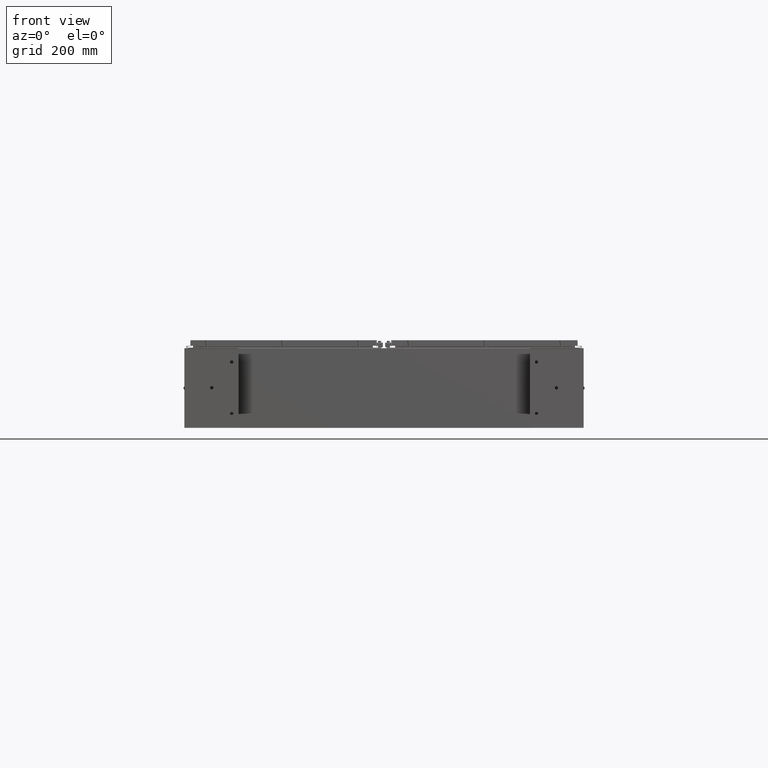
[diagram: clean part render]
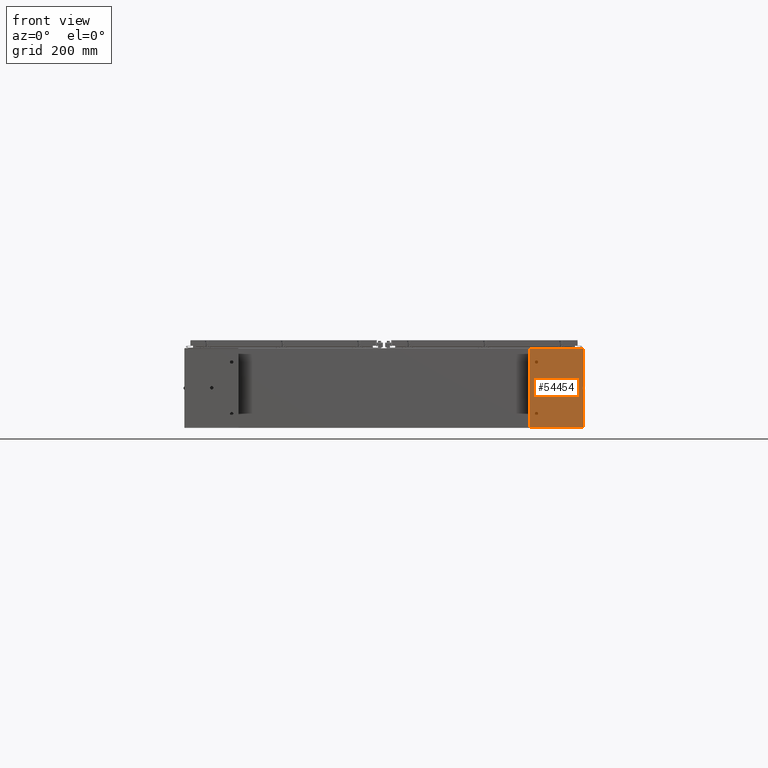
[diagram: same view with one face highlighted and labeled with its STEP entity id]
A machine part, front view. The second image highlights one B-rep face of the part: STEP entity #54454.
In plain terms, the highlighted planar face has unit normal (-0, -1, -0).
Its self-contained STEP definition (entity closure, byte-faithful):
#1050 = VERTEX_POINT ( 'NONE', #67561 ) ;
#1324 = VECTOR ( 'NONE', #30642, 39.37007874015748100 ) ;
#1493 = DIRECTION ( 'NONE',  ( -1.000000000000000000, -9.466330862652141700E-029, 0.0000000000000000000 ) ) ;
#1798 = ORIENTED_EDGE ( 'NONE', *, *, #43441, .F. ) ;
#1810 = DIRECTION ( 'NONE',  ( -1.000000000000000000, -9.466330862652141700E-029, 0.0000000000000000000 ) ) ;
#2202 = CIRCLE ( 'NONE', #42148, 0.2500000000000000000 ) ;
#3073 = ORIENTED_EDGE ( 'NONE', *, *, #45602, .T. ) ;
#4561 = AXIS2_PLACEMENT_3D ( 'NONE', #4680, #46499, #10729 ) ;
#4680 = CARTESIAN_POINT ( 'NONE',  ( 3.878999999999980000, -3.000000000000001800, -0.1049999999999378200 ) ) ;
#6419 = VERTEX_POINT ( 'NONE', #16042 ) ;
#7399 = EDGE_CURVE ( 'NONE', #66103, #13696, #44037, .T. ) ;
#7938 = AXIS2_PLACEMENT_3D ( 'NONE', #29805, #71355, #35818 ) ;
#9477 = CIRCLE ( 'NONE', #17833, 0.2499999999999998100 ) ;
#10403 = EDGE_CURVE ( 'NONE', #1050, #66103, #62993, .T. ) ;
#10729 = DIRECTION ( 'NONE',  ( -1.000000000000000000, 0.0000000000000000000, 0.0000000000000000000 ) ) ;
#10912 = VERTEX_POINT ( 'NONE', #42623 ) ;
#11641 = VERTEX_POINT ( 'NONE', #22710 ) ;
#13696 = VERTEX_POINT ( 'NONE', #24333 ) ;
#15060 = ORIENTED_EDGE ( 'NONE', *, *, #68557, .F. ) ;
#16042 = CARTESIAN_POINT ( 'NONE',  ( 3.628999999999980500, -3.000000000000001800, -0.1049999999999378200 ) ) ;
#17833 = AXIS2_PLACEMENT_3D ( 'NONE', #27972, #69566, #34000 ) ;
#18291 = CIRCLE ( 'NONE', #4561, 0.2499999999999998100 ) ;
#18812 = ORIENTED_EDGE ( 'NONE', *, *, #44799, .F. ) ;
#18969 = CARTESIAN_POINT ( 'NONE',  ( -3.879000000000012900, -3.000000000000001800, -0.1049999999999290800 ) ) ;
#20654 = EDGE_LOOP ( 'NONE', ( #77280, #3073 ) ) ;
#21082 = DIRECTION ( 'NONE',  ( -0.0000000000000000000, -1.198498701752371100E-031, 1.000000000000000000 ) ) ;
#21462 = ORIENTED_EDGE ( 'NONE', *, *, #7399, .F. ) ;
#22710 = CARTESIAN_POINT ( 'NONE',  ( -4.129000000000012900, -3.000000000000001800, -0.1049999999999290800 ) ) ;
#24333 = CARTESIAN_POINT ( 'NONE',  ( -5.878999999999997800, -4.000000000000000900, -0.1049999999999290800 ) ) ;
#24973 = DIRECTION ( 'NONE',  ( -1.000000000000000000, 0.0000000000000000000, 0.0000000000000000000 ) ) ;
#26895 = FACE_OUTER_BOUND ( 'NONE', #27279, .T. ) ;
#27279 = EDGE_LOOP ( 'NONE', ( #70788, #1798, #21462, #30838 ) ) ;
#27972 = CARTESIAN_POINT ( 'NONE',  ( 3.878999999999980000, -3.000000000000001800, -0.1049999999999378200 ) ) ;
#28283 = VECTOR ( 'NONE', #29220, 39.37007874015748100 ) ;
#29220 = DIRECTION ( 'NONE',  ( 9.466330862652141700E-029, 1.000000000000000000, -1.198498701752819500E-031 ) ) ;
#29367 = VERTEX_POINT ( 'NONE', #58353 ) ;
#29805 = CARTESIAN_POINT ( 'NONE',  ( -8.741913579725642300E-015, 0.0000000000000000000, -0.1049999999999990100 ) ) ;
#30546 = CIRCLE ( 'NONE', #55743, 0.2499999999999998100 ) ;
#30642 = DIRECTION ( 'NONE',  ( -1.000000000000000000, -9.466330862652141700E-029, 0.0000000000000000000 ) ) ;
#30838 = ORIENTED_EDGE ( 'NONE', *, *, #10403, .F. ) ;
#30966 = AXIS2_PLACEMENT_3D ( 'NONE', #61044, #37409, #1493 ) ;
#31372 = PLANE ( 'NONE',  #30966 ) ;
#32187 = CARTESIAN_POINT ( 'NONE',  ( -5.878999999999996000, 3.999999999999996900, -0.1049999999999290800 ) ) ;
#32515 = DIRECTION ( 'NONE',  ( -9.466330862652141700E-029, -1.000000000000000000, 1.198498701752819500E-031 ) ) ;
#32789 = CARTESIAN_POINT ( 'NONE',  ( -5.878999999999997800, -4.000000000000000900, -0.1049999999999290800 ) ) ;
#34000 = DIRECTION ( 'NONE',  ( -1.000000000000000000, 0.0000000000000000000, 0.0000000000000000000 ) ) ;
#35818 = DIRECTION ( 'NONE',  ( -1.000000000000000000, -9.466330862652141700E-029, 0.0000000000000000000 ) ) ;
#37409 = DIRECTION ( 'NONE',  ( -1.134538524924699500E-059, 1.198498701752371100E-031, -1.000000000000000000 ) ) ;
#37688 = DIRECTION ( 'NONE',  ( -0.0000000000000000000, -1.198498701752371100E-031, 1.000000000000000000 ) ) ;
#40168 = EDGE_LOOP ( 'NONE', ( #51330, #57879 ) ) ;
#40465 = EDGE_CURVE ( 'NONE', #69789, #1050, #44185, .T. ) ;
#42148 = AXIS2_PLACEMENT_3D ( 'NONE', #73172, #37688, #1810 ) ;
#42560 = CIRCLE ( 'NONE', #71984, 0.2499999999999998100 ) ;
#42623 = CARTESIAN_POINT ( 'NONE',  ( 0.2499999999999912600, 2.365953031994733000E-029, -0.1049999999999990100 ) ) ;
#43441 = EDGE_CURVE ( 'NONE', #13696, #69789, #62317, .T. ) ;
#44037 = LINE ( 'NONE', #32789, #57986 ) ;
#44185 = LINE ( 'NONE', #76486, #28283 ) ;
#44581 = CARTESIAN_POINT ( 'NONE',  ( -0.2500000000000087200, 3.061616997866015800E-017, -0.1049999999999990100 ) ) ;
#44799 = EDGE_CURVE ( 'NONE', #6419, #71329, #18291, .T. ) ;
#45602 = EDGE_CURVE ( 'NONE', #11641, #29367, #42560, .T. ) ;
#46499 = DIRECTION ( 'NONE',  ( 0.0000000000000000000, 1.198498701752371100E-031, -1.000000000000000000 ) ) ;
#46512 = FACE_BOUND ( 'NONE', #20654, .T. ) ;
#47085 = CARTESIAN_POINT ( 'NONE',  ( 5.879000000000004000, -4.000000000000000900, -0.1049999999999290800 ) ) ;
#48749 = VERTEX_POINT ( 'NONE', #44581 ) ;
#48781 = EDGE_LOOP ( 'NONE', ( #15060, #18812 ) ) ;
#49119 = DIRECTION ( 'NONE',  ( 1.000000000000000000, 9.466330862652141700E-029, 0.0000000000000000000 ) ) ;
#49826 = EDGE_CURVE ( 'NONE', #10912, #48749, #2202, .T. ) ;
#50135 = CARTESIAN_POINT ( 'NONE',  ( -5.878999999999996000, 3.999999999999996900, -0.1049999999999290800 ) ) ;
#51330 = ORIENTED_EDGE ( 'NONE', *, *, #49826, .T. ) ;
#54454 = ADVANCED_FACE ( 'NONE', ( #26895, #74250, #46512, #72428 ), #31372, .T. ) ;
#55743 = AXIS2_PLACEMENT_3D ( 'NONE', #56792, #21082, #62750 ) ;
#56792 = CARTESIAN_POINT ( 'NONE',  ( -3.879000000000012900, -3.000000000000001800, -0.1049999999999290800 ) ) ;
#57879 = ORIENTED_EDGE ( 'NONE', *, *, #62458, .T. ) ;
#57986 = VECTOR ( 'NONE', #32515, 39.37007874015748100 ) ;
#58353 = CARTESIAN_POINT ( 'NONE',  ( -3.629000000000013300, -3.000000000000001800, -0.1049999999999290800 ) ) ;
#60678 = DIRECTION ( 'NONE',  ( -0.0000000000000000000, -1.198498701752371100E-031, 1.000000000000000000 ) ) ;
#61044 = CARTESIAN_POINT ( 'NONE',  ( 5.878999999999982700, 4.000000000000000900, -0.1049999999999290800 ) ) ;
#61462 = CARTESIAN_POINT ( 'NONE',  ( 4.128999999999980000, -3.000000000000001800, -0.1049999999999378200 ) ) ;
#62317 = LINE ( 'NONE', #72657, #76131 ) ;
#62458 = EDGE_CURVE ( 'NONE', #48749, #10912, #77229, .T. ) ;
#62750 = DIRECTION ( 'NONE',  ( -1.000000000000000000, 0.0000000000000000000, 0.0000000000000000000 ) ) ;
#62993 = LINE ( 'NONE', #32187, #1324 ) ;
#66103 = VERTEX_POINT ( 'NONE', #50135 ) ;
#67561 = CARTESIAN_POINT ( 'NONE',  ( 5.878999999999982700, 4.000000000000000900, -0.1049999999999290800 ) ) ;
#68557 = EDGE_CURVE ( 'NONE', #71329, #6419, #9477, .T. ) ;
#69566 = DIRECTION ( 'NONE',  ( 0.0000000000000000000, 1.198498701752371100E-031, -1.000000000000000000 ) ) ;
#69789 = VERTEX_POINT ( 'NONE', #47085 ) ;
#70788 = ORIENTED_EDGE ( 'NONE', *, *, #40465, .F. ) ;
#71329 = VERTEX_POINT ( 'NONE', #61462 ) ;
#71355 = DIRECTION ( 'NONE',  ( -0.0000000000000000000, -1.198498701752371100E-031, 1.000000000000000000 ) ) ;
#71984 = AXIS2_PLACEMENT_3D ( 'NONE', #18969, #60678, #24973 ) ;
#72428 = FACE_BOUND ( 'NONE', #48781, .T. ) ;
#72657 = CARTESIAN_POINT ( 'NONE',  ( -5.878999999999997800, -4.000000000000000900, -0.1049999999999290800 ) ) ;
#73172 = CARTESIAN_POINT ( 'NONE',  ( -8.741913579725642300E-015, 0.0000000000000000000, -0.1049999999999990100 ) ) ;
#74250 = FACE_BOUND ( 'NONE', #40168, .T. ) ;
#76131 = VECTOR ( 'NONE', #49119, 39.37007874015748100 ) ;
#76486 = CARTESIAN_POINT ( 'NONE',  ( 5.879000000000004000, -4.000000000000000900, -0.1049999999999290800 ) ) ;
#76541 = EDGE_CURVE ( 'NONE', #29367, #11641, #30546, .T. ) ;
#77229 = CIRCLE ( 'NONE', #7938, 0.2500000000000000000 ) ;
#77280 = ORIENTED_EDGE ( 'NONE', *, *, #76541, .T. ) ;